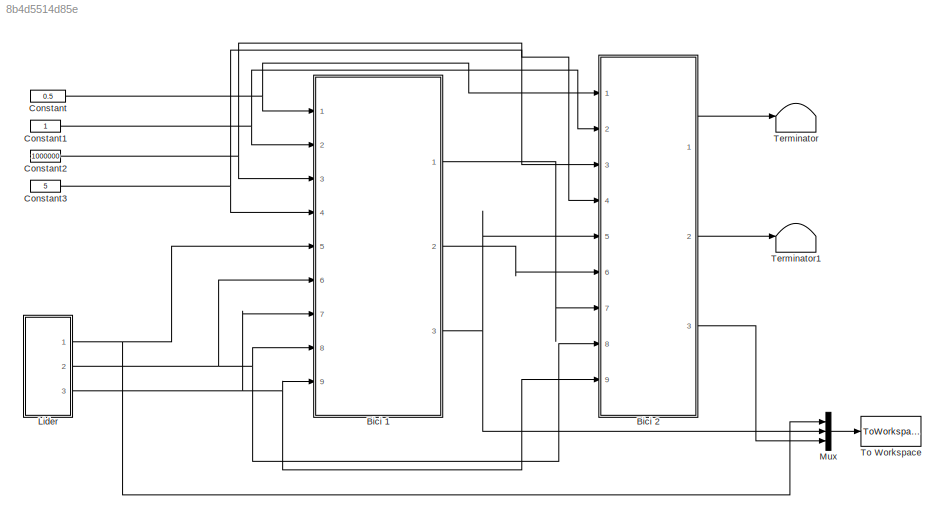
MODEL slx_8b4d5514d85e
KIND model
CONFIG AbsTol = auto
CONFIG EnableMultiTasking = off
CONFIG FixedStep = auto
CONFIG MaxStep = auto
CONFIG MinStep = auto
CONFIG RelTol = 1e-3
CONFIG SampleTimeConstraint = Unconstrained
CONFIG Solver = VariableStepAuto
CONFIG SolverName = VariableStepAuto
CONFIG StartTime = 0.0
CONFIG StopTime = 50.0
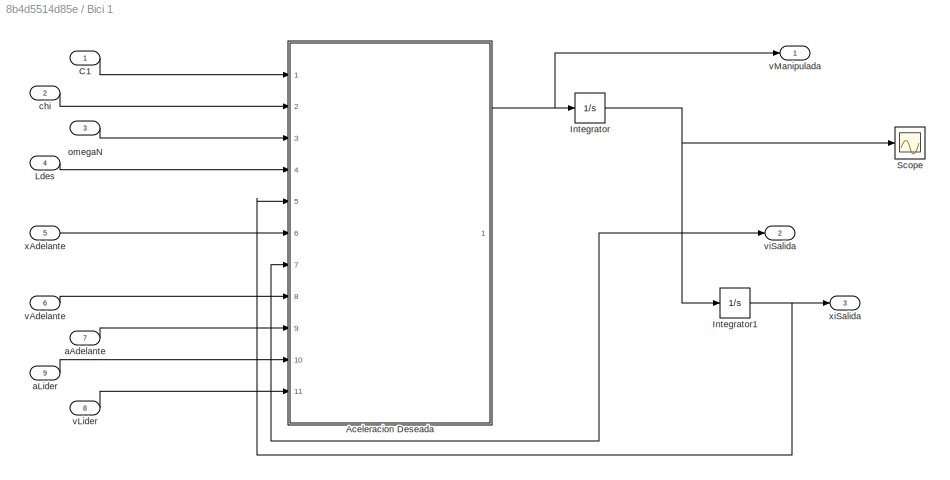
BLOCK [SubSystem] Bici 1
  Ports = [9, 3]
  RequestExecContextInheritance = off
  Variant = off
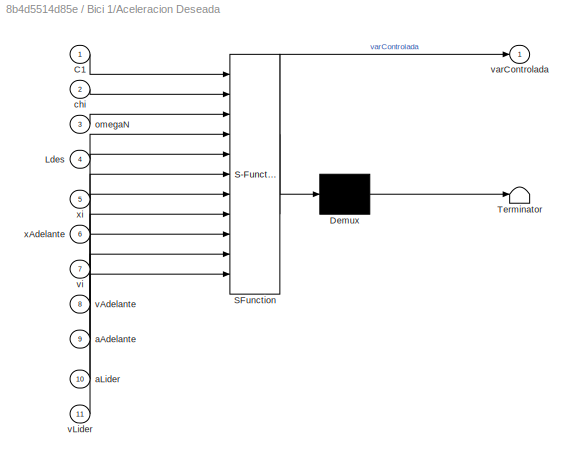
BLOCK [SubSystem] Bici 1/Aceleracion Deseada
  ErrorFcn = Stateflow.Translate.translate
  PermitHierarchicalResolution = ExplicitOnly
  Ports = [11, 1]
  RequestExecContextInheritance = off
  SFBlockType = MATLAB Function
  TreatAsAtomicUnit = on
  Variant = off
BLOCK [Demux] Bici 1/Aceleracion Deseada/ Demux 
  Outputs = 1
  Ports = [1, 1]
BLOCK [S-Function] Bici 1/Aceleracion Deseada/ SFunction 
  EnableBusSupport = on
  FunctionName = sf_sfun
  PortCounts = [11 2]
  Ports = [11, 2]
  SFcnIsStateOwnerBlock = off
  SFunctionDeploymentMode = off
  Tag = Stateflow S-Function xDes 1
BLOCK [Terminator] Bici 1/Aceleracion Deseada/ Terminator 
BLOCK [Inport] Bici 1/Aceleracion Deseada/C1
  IconDisplay = Port number
BLOCK [Inport] Bici 1/Aceleracion Deseada/Ldes
  IconDisplay = Port number
  Port = 4
BLOCK [Inport] Bici 1/Aceleracion Deseada/aAdelante
  IconDisplay = Port number
  Port = 9
BLOCK [Inport] Bici 1/Aceleracion Deseada/aLider
  IconDisplay = Port number
  Port = 10
BLOCK [Inport] Bici 1/Aceleracion Deseada/chi
  IconDisplay = Port number
  Port = 2
BLOCK [Inport] Bici 1/Aceleracion Deseada/omegaN
  IconDisplay = Port number
  Port = 3
BLOCK [Inport] Bici 1/Aceleracion Deseada/vAdelante
  IconDisplay = Port number
  Port = 8
BLOCK [Inport] Bici 1/Aceleracion Deseada/vLider
  IconDisplay = Port number
  Port = 11
BLOCK [Outport] Bici 1/Aceleracion Deseada/varControlada
  IconDisplay = Port number
BLOCK [Inport] Bici 1/Aceleracion Deseada/vi
  IconDisplay = Port number
  Port = 7
BLOCK [Inport] Bici 1/Aceleracion Deseada/xAdelante
  IconDisplay = Port number
  Port = 6
BLOCK [Inport] Bici 1/Aceleracion Deseada/xi
  IconDisplay = Port number
  Port = 5
BLOCK [Inport] Bici 1/C1
  IconDisplay = Port number
BLOCK [Integrator] Bici 1/Integrator
  Ports = [1, 1]
BLOCK [Integrator] Bici 1/Integrator1
  InitialCondition = 10
  Ports = [1, 1]
BLOCK [Inport] Bici 1/Ldes
  IconDisplay = Port number
  Port = 4
BLOCK [Scope] Bici 1/Scope
  NumInputPorts = 1
  Ports = [1]
  ScopeSpecificationString = Simulink.scopes.TimeScopeBlockCfg('CurrentConfiguration', extmgr.ConfigurationSet(extmgr.Configuration('Core','General UI',true),extmgr.Configuration('Core','Source UI',true),extmgr.Configuration('Sources','WiredSimulink',true,'DataLoggingVariableName','ScopeData1'),extmgr.Configuration('Visuals','Time Domain',true,'SerializedDisplays',{struct('MinYLimReal','-3.86389','MaxYLimReal','10.77343','YLa...<+1373ch>
BLOCK [Inport] Bici 1/aAdelante
  IconDisplay = Port number
  Port = 7
BLOCK [Inport] Bici 1/aLider 
  IconDisplay = Port number
  Port = 9
BLOCK [Inport] Bici 1/chi
  IconDisplay = Port number
  Port = 2
BLOCK [Inport] Bici 1/omegaN
  IconDisplay = Port number
  Port = 3
BLOCK [Inport] Bici 1/vAdelante
  IconDisplay = Port number
  Port = 6
BLOCK [Inport] Bici 1/vLider 
  IconDisplay = Port number
  Port = 8
BLOCK [Outport] Bici 1/vManipulada
  IconDisplay = Port number
BLOCK [Outport] Bici 1/viSalida
  IconDisplay = Port number
  Port = 2
BLOCK [Inport] Bici 1/xAdelante
  IconDisplay = Port number
  Port = 5
BLOCK [Outport] Bici 1/xiSalida 
  IconDisplay = Port number
  Port = 3
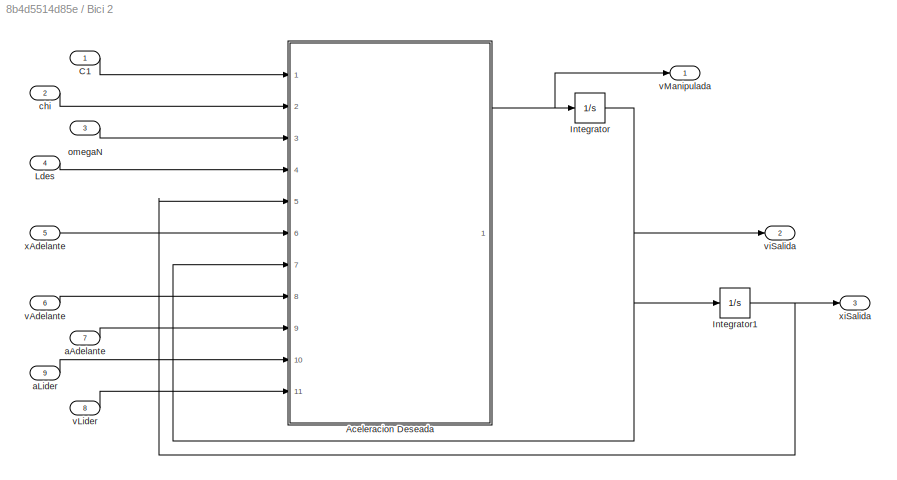
BLOCK [SubSystem] Bici 2
  Ports = [9, 3]
  RequestExecContextInheritance = off
  Variant = off
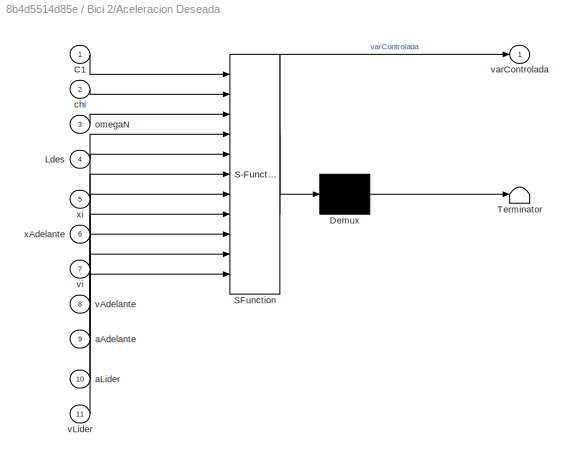
BLOCK [SubSystem] Bici 2/Aceleracion Deseada
  ErrorFcn = Stateflow.Translate.translate
  PermitHierarchicalResolution = ExplicitOnly
  Ports = [11, 1]
  RequestExecContextInheritance = off
  SFBlockType = MATLAB Function
  TreatAsAtomicUnit = on
  Variant = off
BLOCK [Demux] Bici 2/Aceleracion Deseada/ Demux 
  Outputs = 1
  Ports = [1, 1]
BLOCK [S-Function] Bici 2/Aceleracion Deseada/ SFunction 
  EnableBusSupport = on
  FunctionName = sf_sfun
  PortCounts = [11 2]
  Ports = [11, 2]
  SFcnIsStateOwnerBlock = off
  SFunctionDeploymentMode = off
  Tag = Stateflow S-Function xDes 2
BLOCK [Terminator] Bici 2/Aceleracion Deseada/ Terminator 
BLOCK [Inport] Bici 2/Aceleracion Deseada/C1
  IconDisplay = Port number
BLOCK [Inport] Bici 2/Aceleracion Deseada/Ldes
  IconDisplay = Port number
  Port = 4
BLOCK [Inport] Bici 2/Aceleracion Deseada/aAdelante
  IconDisplay = Port number
  Port = 9
BLOCK [Inport] Bici 2/Aceleracion Deseada/aLider
  IconDisplay = Port number
  Port = 10
BLOCK [Inport] Bici 2/Aceleracion Deseada/chi
  IconDisplay = Port number
  Port = 2
BLOCK [Inport] Bici 2/Aceleracion Deseada/omegaN
  IconDisplay = Port number
  Port = 3
BLOCK [Inport] Bici 2/Aceleracion Deseada/vAdelante
  IconDisplay = Port number
  Port = 8
BLOCK [Inport] Bici 2/Aceleracion Deseada/vLider
  IconDisplay = Port number
  Port = 11
BLOCK [Outport] Bici 2/Aceleracion Deseada/varControlada
  IconDisplay = Port number
BLOCK [Inport] Bici 2/Aceleracion Deseada/vi
  IconDisplay = Port number
  Port = 7
BLOCK [Inport] Bici 2/Aceleracion Deseada/xAdelante
  IconDisplay = Port number
  Port = 6
BLOCK [Inport] Bici 2/Aceleracion Deseada/xi
  IconDisplay = Port number
  Port = 5
BLOCK [Inport] Bici 2/C1
  IconDisplay = Port number
BLOCK [Integrator] Bici 2/Integrator
  Ports = [1, 1]
BLOCK [Integrator] Bici 2/Integrator1
  Ports = [1, 1]
BLOCK [Inport] Bici 2/Ldes
  IconDisplay = Port number
  Port = 4
BLOCK [Inport] Bici 2/aAdelante
  IconDisplay = Port number
  Port = 7
BLOCK [Inport] Bici 2/aLider 
  IconDisplay = Port number
  Port = 9
BLOCK [Inport] Bici 2/chi
  IconDisplay = Port number
  Port = 2
BLOCK [Inport] Bici 2/omegaN
  IconDisplay = Port number
  Port = 3
BLOCK [Inport] Bici 2/vAdelante
  IconDisplay = Port number
  Port = 6
BLOCK [Inport] Bici 2/vLider 
  IconDisplay = Port number
  Port = 8
BLOCK [Outport] Bici 2/vManipulada
  IconDisplay = Port number
BLOCK [Outport] Bici 2/viSalida
  IconDisplay = Port number
  Port = 2
BLOCK [Inport] Bici 2/xAdelante
  IconDisplay = Port number
  Port = 5
BLOCK [Outport] Bici 2/xiSalida 
  IconDisplay = Port number
  Port = 3
BLOCK [Constant] Constant
  Value = 0.5
BLOCK [Constant] Constant1
BLOCK [Constant] Constant2
  Value = 1000000
BLOCK [Constant] Constant3
  Value = 5
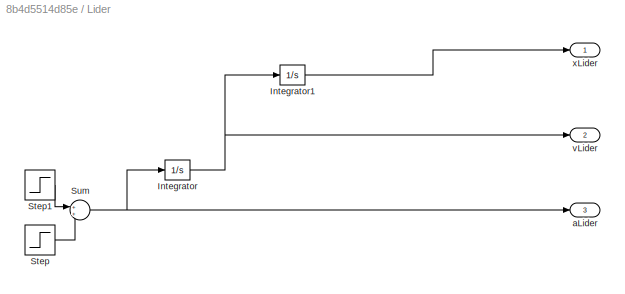
BLOCK [SubSystem] Lider
  Ports = [0, 3]
  RequestExecContextInheritance = off
  Variant = off
BLOCK [Integrator] Lider/Integrator
  InitialCondition = 4.16
  Ports = [1, 1]
BLOCK [Integrator] Lider/Integrator1
  InitialCondition = 20
  Ports = [1, 1]
BLOCK [Step] Lider/Step
  After = -0.1
  SampleTime = 0
  Time = 30
BLOCK [Step] Lider/Step1
  After = 0.1
  SampleTime = 0
  Time = 20
BLOCK [Sum] Lider/Sum
  IconShape = round
  InputSameDT = off
  OutDataTypeStr = Inherit: Inherit via internal rule
  Ports = [2, 1]
  SaturateOnIntegerOverflow = off
BLOCK [Outport] Lider/aLider 
  IconDisplay = Port number
  Port = 3
BLOCK [Outport] Lider/vLider
  IconDisplay = Port number
  Port = 2
BLOCK [Outport] Lider/xLider 
  IconDisplay = Port number
BLOCK [Mux] Mux
  DisplayOption = bar
  Inputs = 3
  Ports = [3, 1]
BLOCK [Terminator] Terminator
BLOCK [Terminator] Terminator1
BLOCK [ToWorkspace] To Workspace
  FixptAsFi = on
  MaxDataPoints = inf
  Ports = [1]
  SampleTime = -1
  Save2DSignal = 3-D array (concatenate along third dimension)
  SaveFormat = Timeseries
  VariableName = simout
NET Bici 1/Aceleracion Deseada:1 -> Bici 1/Integrator:1, Bici 1/vManipulada:1
LINE Bici 1/C1:1 -> Bici 1/Aceleracion Deseada:1
NET Bici 1/Integrator1:1 -> Bici 1/Aceleracion Deseada:5, Bici 1/xiSalida :1
NET Bici 1/Integrator:1 -> Bici 1/Aceleracion Deseada:7, Bici 1/Integrator1:1, Bici 1/Scope:1, Bici 1/viSalida:1
LINE Bici 1/Ldes:1 -> Bici 1/Aceleracion Deseada:4
LINE Bici 1/aAdelante:1 -> Bici 1/Aceleracion Deseada:9
LINE Bici 1/aLider :1 -> Bici 1/Aceleracion Deseada:10
LINE Bici 1/chi:1 -> Bici 1/Aceleracion Deseada:2
LINE Bici 1/omegaN:1 -> Bici 1/Aceleracion Deseada:3
LINE Bici 1/vAdelante:1 -> Bici 1/Aceleracion Deseada:8
LINE Bici 1/vLider :1 -> Bici 1/Aceleracion Deseada:11
LINE Bici 1/xAdelante:1 -> Bici 1/Aceleracion Deseada:6
LINE Bici 1:1 -> Bici 2:7
LINE Bici 1:2 -> Bici 2:6
NET Bici 1:3 -> Bici 2:5, Mux:2
NET Bici 2/Aceleracion Deseada:1 -> Bici 2/Integrator:1, Bici 2/vManipulada:1
LINE Bici 2/C1:1 -> Bici 2/Aceleracion Deseada:1
NET Bici 2/Integrator1:1 -> Bici 2/Aceleracion Deseada:5, Bici 2/xiSalida :1
NET Bici 2/Integrator:1 -> Bici 2/Aceleracion Deseada:7, Bici 2/Integrator1:1, Bici 2/viSalida:1
LINE Bici 2/Ldes:1 -> Bici 2/Aceleracion Deseada:4
LINE Bici 2/aAdelante:1 -> Bici 2/Aceleracion Deseada:9
LINE Bici 2/aLider :1 -> Bici 2/Aceleracion Deseada:10
LINE Bici 2/chi:1 -> Bici 2/Aceleracion Deseada:2
LINE Bici 2/omegaN:1 -> Bici 2/Aceleracion Deseada:3
LINE Bici 2/vAdelante:1 -> Bici 2/Aceleracion Deseada:8
LINE Bici 2/vLider :1 -> Bici 2/Aceleracion Deseada:11
LINE Bici 2/xAdelante:1 -> Bici 2/Aceleracion Deseada:6
LINE Bici 2:1 -> Terminator:1
LINE Bici 2:2 -> Terminator1:1
LINE Bici 2:3 -> Mux:3
NET Constant1:1 -> Bici 1:2, Bici 2:2
NET Constant2:1 -> Bici 1:3, Bici 2:3
NET Constant3:1 -> Bici 1:4, Bici 2:4
NET Constant:1 -> Bici 1:1, Bici 2:1
LINE Lider/Integrator1:1 -> Lider/xLider :1
NET Lider/Integrator:1 -> Lider/Integrator1:1, Lider/vLider:1
LINE Lider/Step1:1 -> Lider/Sum:1
LINE Lider/Step:1 -> Lider/Sum:2
NET Lider/Sum:1 -> Lider/Integrator:1, Lider/aLider :1
NET Lider:1 -> Bici 1:5, Mux:1
NET Lider:2 -> Bici 1:6, Bici 1:8, Bici 2:8
NET Lider:3 -> Bici 1:7, Bici 1:9, Bici 2:9
LINE Mux:1 -> To Workspace:1
note: NET lines group one-source signal fan-out (src -> all destinations, sorted); 1:1 wires keep LINE
CHART Bici 1/Aceleracion Deseada states=1 transitions=1
  STATE_LABEL 'eML_blk_kernel()'
  STATE_LABEL 'SCRIPT:\nfunction varControlada  = xDes(C1,chi,omegaN,Ldes,xi,xAdelante,vi,vAdelante,aAdelante,aLider,vLider)\n%Constantes (Terminos que acompanan a los terminos de error.\nalpha1 = 1-C1;\nalpha2 = C1;\nalpha3 = -1 * (2 * chi - C1* (chi + sqrt((chi^2) - 1))) * omegaN;\nalpha4 = -1 * (chi + sqrt((chi^2) - 1)) * omegaN * C1;\nalpha5 = -1 * (omegaN^2);\n\n%Errores (epsilon)\nerrorSpacing =  xi - xAdelante + Ld...<+268ch>'
CHART Bici 2/Aceleracion Deseada states=1 transitions=1
  STATE_LABEL 'eML_blk_kernel()'
  STATE_LABEL 'SCRIPT:\nfunction varControlada  = xDes(C1,chi,omegaN,Ldes,xi,xAdelante,vi,vAdelante,aAdelante,aLider,vLider)\n%Constantes (Terminos que acompanan a los terminos de error.\nalpha1 = 1-C1;\nalpha2 = C1;\nalpha3 = -1 * (2 * chi - C1* (chi + sqrt((chi^2) - 1))) * omegaN;\nalpha4 = -1 * (chi + sqrt((chi^2) - 1)) * omegaN * C1;\nalpha5 = -1 * (omegaN^2);\n\n%Errores (epsilon)\nerrorSpacing =  xi - xAdelante + Ld...<+268ch>'
